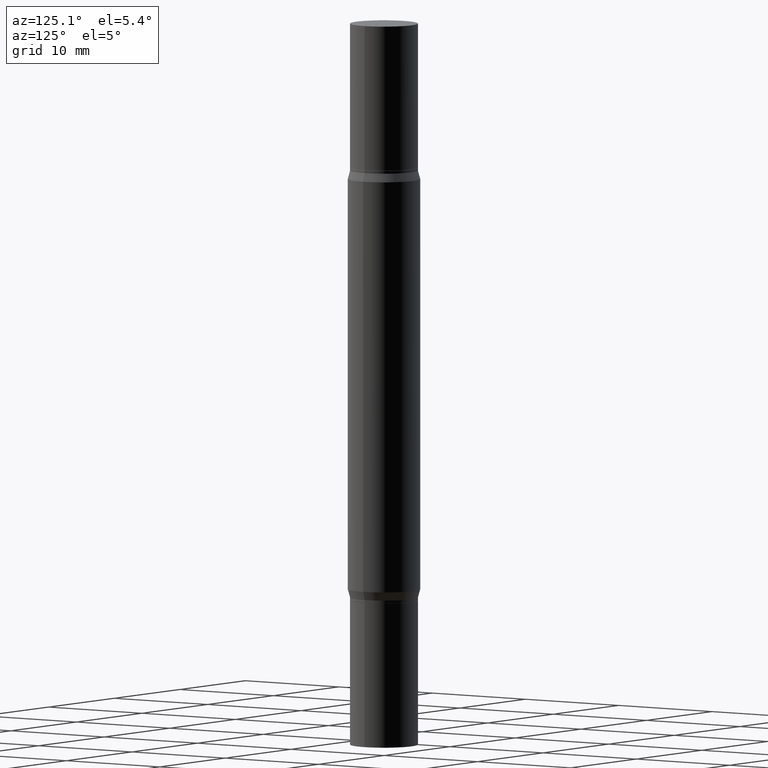
[diagram: clean part render]
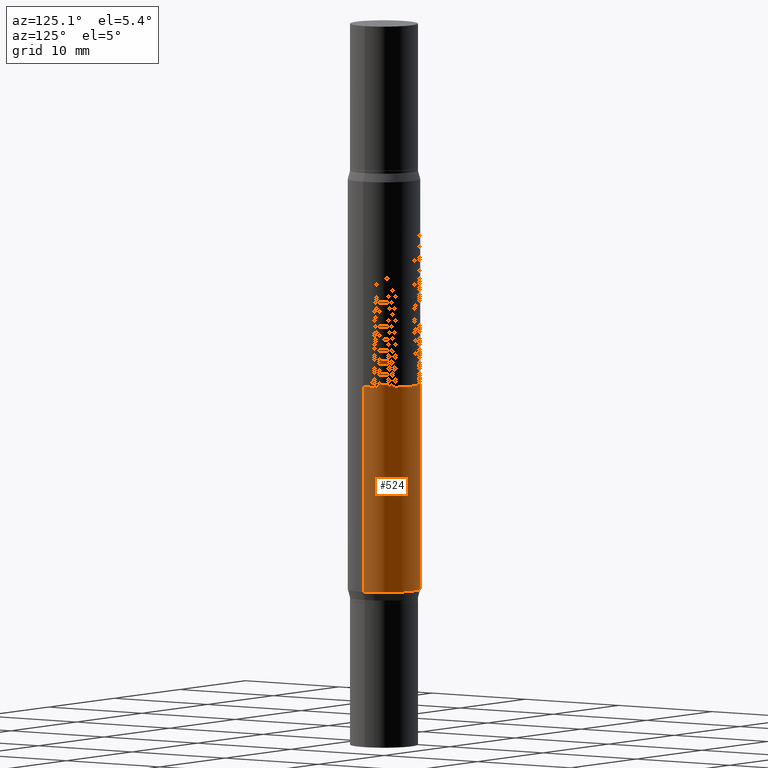
[diagram: same view with one face highlighted and labeled with its STEP entity id]
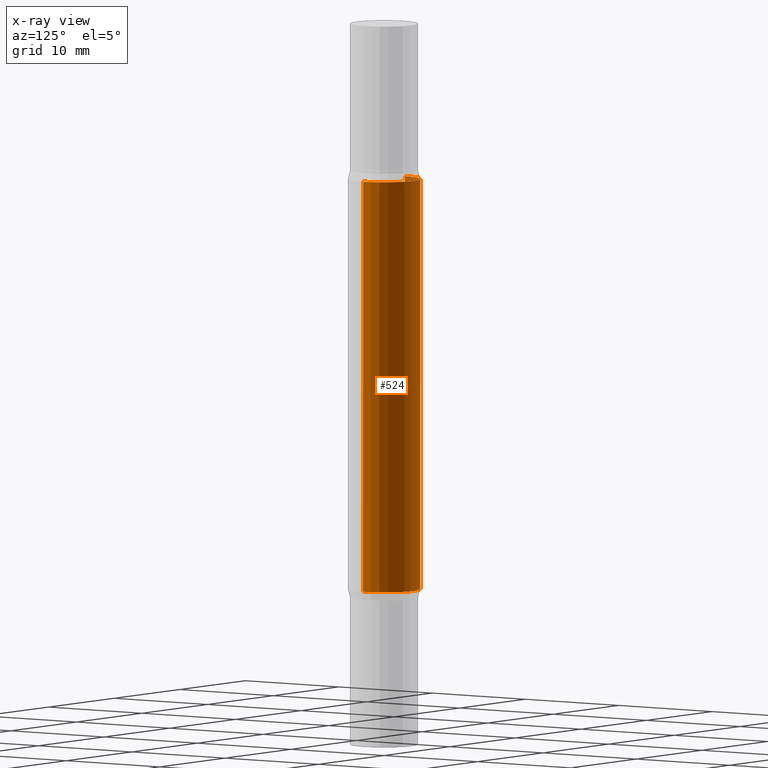
[diagram: x-ray of the same camera — body ghosted, the highlighted face saturated]
A machine part, auxiliary view. The second image highlights one B-rep face of the part: STEP entity #524.
The next image is the same camera in x-ray: the body ghosted, the highlighted face saturated — about 0% of this face is hidden behind the body in this view.
In plain terms, the highlighted cylindrical surface (edge-blend (fillet) strip) has radius 3.175 mm, axis along (-0, -0, -1).
Its self-contained STEP definition (entity closure, byte-faithful):
#14 = CARTESIAN_POINT ( 'NONE',  ( 4.795295336410958635E-29, -1.882062336673981410E-15, -0.5391099962990381078 ) ) ;
#41 = ORIENTED_EDGE ( 'NONE', *, *, #969, .F. ) ;
#43 = CARTESIAN_POINT ( 'NONE',  ( 4.795295336410958635E-29, -6.846410855445973637E-15, -1.960890003700961337 ) ) ;
#91 = LINE ( 'NONE', #155, #257 ) ;
#124 = VERTEX_POINT ( 'NONE', #833 ) ;
#126 = DIRECTION ( 'NONE',  ( -2.445468806185136877E-29, -3.491805094961123683E-15, -1.000000000000000000 ) ) ;
#155 = CARTESIAN_POINT ( 'NONE',  ( 0.1250000000000000000, -9.601978376966118441E-15, -2.499999999999999556 ) ) ;
#157 = EDGE_CURVE ( 'NONE', #752, #124, #369, .T. ) ;
#167 = CARTESIAN_POINT ( 'NONE',  ( 0.1250000000000000000, -7.719281190156756975E-15, -1.960890003700961337 ) ) ;
#180 = EDGE_CURVE ( 'NONE', #752, #836, #91, .T. ) ;
#200 = CARTESIAN_POINT ( 'NONE',  ( 0.000000000000000000, -8.729108042255335103E-15, -2.499999999999999556 ) ) ;
#215 = CIRCLE ( 'NONE', #706, 0.1250000000000000000 ) ;
#250 = ORIENTED_EDGE ( 'NONE', *, *, #951, .T. ) ;
#254 = ORIENTED_EDGE ( 'NONE', *, *, #180, .T. ) ;
#257 = VECTOR ( 'NONE', #393, 39.37007874015748143 ) ;
#262 = LINE ( 'NONE', #792, #694 ) ;
#353 = FACE_OUTER_BOUND ( 'NONE', #897, .T. ) ;
#362 = CYLINDRICAL_SURFACE ( 'NONE', #931, 0.1250000000000000000 ) ;
#369 = CIRCLE ( 'NONE', #927, 0.1250000000000000000 ) ;
#393 = DIRECTION ( 'NONE',  ( -2.445468806185136877E-29, -3.491805094961123683E-15, -1.000000000000000000 ) ) ;
#523 = DIRECTION ( 'NONE',  ( 2.445468806185136597E-29, 3.491805094961124077E-15, 1.000000000000000000 ) ) ;
#524 = ADVANCED_FACE ( 'NONE', ( #353 ), #362, .T. ) ;
#582 = DIRECTION ( 'NONE',  ( 1.000000000000000000, -6.982962677686270655E-15, 0.000000000000000000 ) ) ;
#602 = DIRECTION ( 'NONE',  ( 1.000000000000000000, -6.982962677686266711E-15, 0.000000000000000000 ) ) ;
#664 = DIRECTION ( 'NONE',  ( 1.000000000000000000, -6.982962677686262766E-15, 0.000000000000000000 ) ) ;
#674 = VERTEX_POINT ( 'NONE', #795 ) ;
#694 = VECTOR ( 'NONE', #126, 39.37007874015748143 ) ;
#706 = AXIS2_PLACEMENT_3D ( 'NONE', #43, #736, #582 ) ;
#735 = DIRECTION ( 'NONE',  ( -2.445468806185136597E-29, -3.491805094961124077E-15, -1.000000000000000000 ) ) ;
#736 = DIRECTION ( 'NONE',  ( -2.445468806185136597E-29, 3.491481338843145583E-15, 1.000000000000000000 ) ) ;
#752 = VERTEX_POINT ( 'NONE', #973 ) ;
#772 = ORIENTED_EDGE ( 'NONE', *, *, #157, .F. ) ;
#792 = CARTESIAN_POINT ( 'NONE',  ( -0.1250000000000000000, -7.871545792533893657E-15, -2.499999999999999556 ) ) ;
#795 = CARTESIAN_POINT ( 'NONE',  ( -0.1250000000000000000, -3.506789423832489448E-15, -1.960890003700961337 ) ) ;
#833 = CARTESIAN_POINT ( 'NONE',  ( -0.1250000000000000000, -1.024500086952540162E-15, -0.5391099962990381078 ) ) ;
#836 = VERTEX_POINT ( 'NONE', #167 ) ;
#897 = EDGE_LOOP ( 'NONE', ( #41, #772, #254, #250 ) ) ;
#927 = AXIS2_PLACEMENT_3D ( 'NONE', #14, #523, #602 ) ;
#931 = AXIS2_PLACEMENT_3D ( 'NONE', #200, #735, #664 ) ;
#951 = EDGE_CURVE ( 'NONE', #836, #674, #215, .T. ) ;
#969 = EDGE_CURVE ( 'NONE', #124, #674, #262, .T. ) ;
#973 = CARTESIAN_POINT ( 'NONE',  ( 0.1250000000000000000, -2.754932671384765144E-15, -0.5391099962990381078 ) ) ;